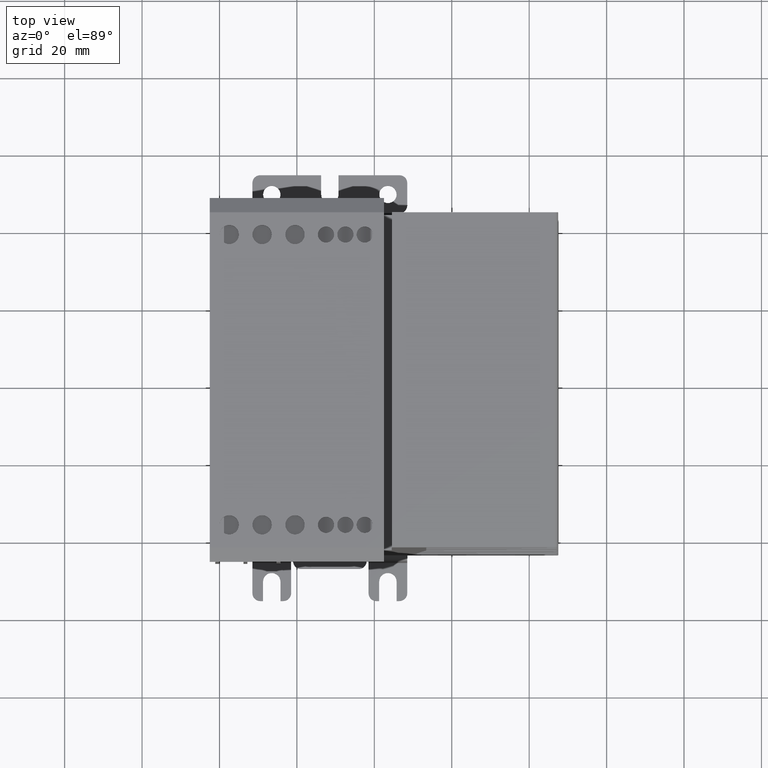
[diagram: clean part render]
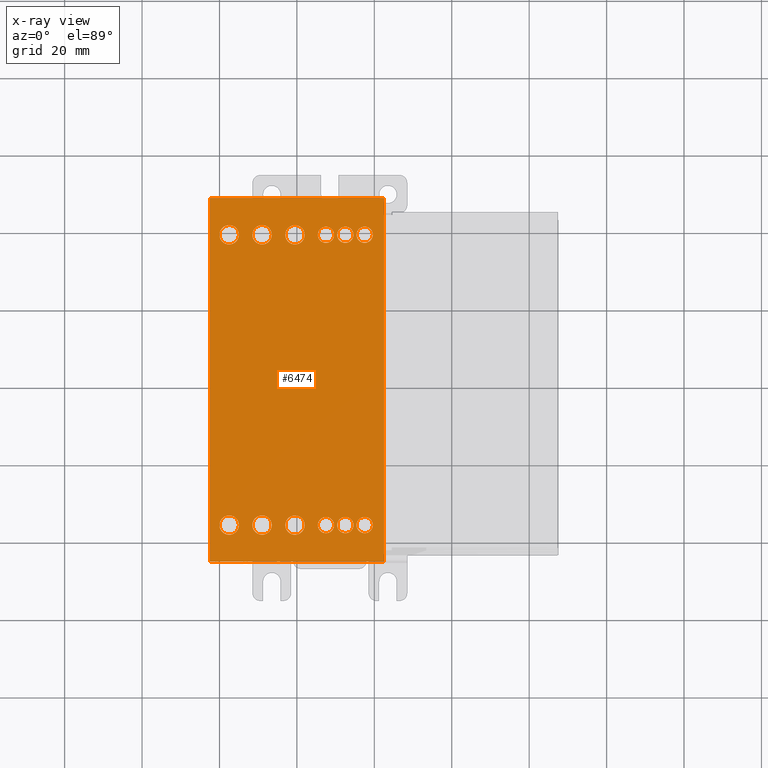
[diagram: x-ray — body ghosted, one internal face saturated and labeled with its STEP entity id]
A machine part, top view, then the same camera in x-ray: the body is ghosted and one INTERNAL B-rep face — a face not visible from any outside direction — is saturated and labeled: STEP entity #6474.
In plain terms, the highlighted planar face has unit normal (0, 0, 1).
Its self-contained STEP definition (entity closure, byte-faithful):
#47 = DIRECTION ( 'NONE',  ( -0.000000000000000000, -0.000000000000000000, -1.000000000000000000 ) ) ;
#53 = EDGE_LOOP ( 'NONE', ( #10457, #2435 ) ) ;
#82 = DIRECTION ( 'NONE',  ( 1.000000000000000000, 0.000000000000000000, 0.000000000000000000 ) ) ;
#96 = DIRECTION ( 'NONE',  ( 1.000000000000000000, 0.000000000000000000, 0.000000000000000000 ) ) ;
#103 = AXIS2_PLACEMENT_3D ( 'NONE', #1141, #2150, #8693 ) ;
#122 = EDGE_CURVE ( 'NONE', #529, #9050, #9845, .T. ) ;
#131 = CARTESIAN_POINT ( 'NONE',  ( 0.8858267716535432879, 1.850393700787401619, 1.496062992125984259 ) ) ;
#148 = DIRECTION ( 'NONE',  ( 1.000000000000000000, 0.000000000000000000, 0.000000000000000000 ) ) ;
#156 = CIRCLE ( 'NONE', #11766, 0.09842519685039372024 ) ;
#165 = DIRECTION ( 'NONE',  ( -0.000000000000000000, -0.000000000000000000, -1.000000000000000000 ) ) ;
#186 = FACE_BOUND ( 'NONE', #6530, .T. ) ;
#203 = CARTESIAN_POINT ( 'NONE',  ( -0.4527559055118110520, -1.476377952755905554, 1.496062992125984259 ) ) ;
#257 = FACE_BOUND ( 'NONE', #10529, .T. ) ;
#328 = EDGE_LOOP ( 'NONE', ( #1728, #11535 ) ) ;
#333 = DIRECTION ( 'NONE',  ( -0.000000000000000000, -0.000000000000000000, -1.000000000000000000 ) ) ;
#424 = CARTESIAN_POINT ( 'NONE',  ( -0.7874015748031496509, 1.476377952755905554, 1.496062992125984259 ) ) ;
#529 = VERTEX_POINT ( 'NONE', #12112 ) ;
#584 = EDGE_CURVE ( 'NONE', #5566, #6223, #11873, .T. ) ;
#610 = DIRECTION ( 'NONE',  ( 1.000000000000000000, 0.000000000000000000, 0.000000000000000000 ) ) ;
#642 = CARTESIAN_POINT ( 'NONE',  ( 0.2125984251968504046, 1.476377952755905554, 1.496062992125984259 ) ) ;
#686 = EDGE_LOOP ( 'NONE', ( #4059, #3126 ) ) ;
#774 = ORIENTED_EDGE ( 'NONE', *, *, #8986, .F. ) ;
#873 = AXIS2_PLACEMENT_3D ( 'NONE', #9542, #2060, #10690 ) ;
#977 = EDGE_CURVE ( 'NONE', #2665, #2452, #11429, .T. ) ;
#981 = ORIENTED_EDGE ( 'NONE', *, *, #977, .F. ) ;
#985 = ORIENTED_EDGE ( 'NONE', *, *, #8868, .F. ) ;
#1011 = DIRECTION ( 'NONE',  ( -0.000000000000000000, -0.000000000000000000, -1.000000000000000000 ) ) ;
#1018 = CIRCLE ( 'NONE', #103, 0.08267716535433068670 ) ;
#1022 = CARTESIAN_POINT ( 'NONE',  ( -0.3543307086614173040, -1.476377952755905554, 1.496062992125984259 ) ) ;
#1028 = AXIS2_PLACEMENT_3D ( 'NONE', #5589, #13019, #3241 ) ;
#1034 = CARTESIAN_POINT ( 'NONE',  ( -0.2559055118110235560, -1.476377952755905554, 1.496062992125984259 ) ) ;
#1084 = CARTESIAN_POINT ( 'NONE',  ( 0.3779527559055118058, -1.476377952755905554, 1.496062992125984259 ) ) ;
#1141 = CARTESIAN_POINT ( 'NONE',  ( 0.2952755905511810774, 1.476377952755905554, 1.496062992125984259 ) ) ;
#1161 = AXIS2_PLACEMENT_3D ( 'NONE', #13125, #11842, #82 ) ;
#1187 = CARTESIAN_POINT ( 'NONE',  ( 0.3779527559055118058, 1.476377952755905554, 1.496062992125984259 ) ) ;
#1251 = CIRCLE ( 'NONE', #1028, 0.09842519685039372024 ) ;
#1258 = EDGE_CURVE ( 'NONE', #6223, #5566, #6652, .T. ) ;
#1299 = DIRECTION ( 'NONE',  ( -0.000000000000000000, -0.000000000000000000, -1.000000000000000000 ) ) ;
#1416 = DIRECTION ( 'NONE',  ( -0.000000000000000000, -0.000000000000000000, -1.000000000000000000 ) ) ;
#1484 = CARTESIAN_POINT ( 'NONE',  ( 0.07874015748031495954, -1.476377952755905554, 1.496062992125984259 ) ) ;
#1523 = VERTEX_POINT ( 'NONE', #12424 ) ;
#1527 = AXIS2_PLACEMENT_3D ( 'NONE', #4389, #8872, #7872 ) ;
#1539 = DIRECTION ( 'NONE',  ( 1.000000000000000000, 0.000000000000000000, 0.000000000000000000 ) ) ;
#1568 = AXIS2_PLACEMENT_3D ( 'NONE', #9721, #13940, #1891 ) ;
#1570 = DIRECTION ( 'NONE',  ( -0.000000000000000000, -0.000000000000000000, -1.000000000000000000 ) ) ;
#1605 = CIRCLE ( 'NONE', #11158, 0.09842519685039370636 ) ;
#1606 = CARTESIAN_POINT ( 'NONE',  ( 0.7716535433070867978, -1.476377952755905554, 1.496062992125984259 ) ) ;
#1616 = ORIENTED_EDGE ( 'NONE', *, *, #2102, .F. ) ;
#1703 = VERTEX_POINT ( 'NONE', #12639 ) ;
#1705 = DIRECTION ( 'NONE',  ( 1.000000000000000000, 0.000000000000000000, 0.000000000000000000 ) ) ;
#1728 = ORIENTED_EDGE ( 'NONE', *, *, #9483, .F. ) ;
#1771 = ORIENTED_EDGE ( 'NONE', *, *, #11611, .F. ) ;
#1791 = VERTEX_POINT ( 'NONE', #1897 ) ;
#1824 = VERTEX_POINT ( 'NONE', #1187 ) ;
#1853 = ORIENTED_EDGE ( 'NONE', *, *, #4327, .F. ) ;
#1891 = DIRECTION ( 'NONE',  ( 1.000000000000000000, 0.000000000000000000, 0.000000000000000000 ) ) ;
#1897 = CARTESIAN_POINT ( 'NONE',  ( -0.5905511811023622659, -1.476377952755905554, 1.496062992125984259 ) ) ;
#1898 = CARTESIAN_POINT ( 'NONE',  ( -0.4527559055118110520, 1.476377952755905554, 1.496062992125984259 ) ) ;
#1927 = EDGE_CURVE ( 'NONE', #1824, #3493, #1018, .T. ) ;
#1969 = VECTOR ( 'NONE', #9665, 39.37007874015748143 ) ;
#1974 = CARTESIAN_POINT ( 'NONE',  ( 0.6062992125984253411, -1.476377952755905554, 1.496062992125984259 ) ) ;
#1997 = AXIS2_PLACEMENT_3D ( 'NONE', #8663, #47, #7452 ) ;
#2038 = ORIENTED_EDGE ( 'NONE', *, *, #8355, .F. ) ;
#2060 = DIRECTION ( 'NONE',  ( -0.000000000000000000, -0.000000000000000000, -1.000000000000000000 ) ) ;
#2102 = EDGE_CURVE ( 'NONE', #8024, #10325, #13769, .T. ) ;
#2104 = AXIS2_PLACEMENT_3D ( 'NONE', #13232, #333, #7806 ) ;
#2150 = DIRECTION ( 'NONE',  ( -0.000000000000000000, -0.000000000000000000, -1.000000000000000000 ) ) ;
#2211 = CIRCLE ( 'NONE', #6973, 0.08267716535433075609 ) ;
#2222 = AXIS2_PLACEMENT_3D ( 'NONE', #5448, #8796, #12092 ) ;
#2251 = ORIENTED_EDGE ( 'NONE', *, *, #3992, .F. ) ;
#2321 = FACE_BOUND ( 'NONE', #53, .T. ) ;
#2372 = EDGE_CURVE ( 'NONE', #11783, #3773, #1251, .T. ) ;
#2435 = ORIENTED_EDGE ( 'NONE', *, *, #1258, .F. ) ;
#2452 = VERTEX_POINT ( 'NONE', #2597 ) ;
#2523 = FACE_BOUND ( 'NONE', #12890, .T. ) ;
#2597 = CARTESIAN_POINT ( 'NONE',  ( 0.6062992125984253411, 1.476377952755905554, 1.496062992125984259 ) ) ;
#2665 = VERTEX_POINT ( 'NONE', #6498 ) ;
#2738 = FACE_BOUND ( 'NONE', #5861, .T. ) ;
#2900 = CIRCLE ( 'NONE', #1997, 0.09842519685039372024 ) ;
#2904 = EDGE_LOOP ( 'NONE', ( #774, #4306 ) ) ;
#2912 = CIRCLE ( 'NONE', #873, 0.09842519685039370636 ) ;
#2919 = ORIENTED_EDGE ( 'NONE', *, *, #6382, .F. ) ;
#2930 = CARTESIAN_POINT ( 'NONE',  ( 0.4921259842519685179, 1.476377952755905554, 1.496062992125984259 ) ) ;
#3068 = DIRECTION ( 'NONE',  ( -0.000000000000000000, -0.000000000000000000, -1.000000000000000000 ) ) ;
#3126 = ORIENTED_EDGE ( 'NONE', *, *, #122, .F. ) ;
#3241 = DIRECTION ( 'NONE',  ( 1.000000000000000000, 0.000000000000000000, 0.000000000000000000 ) ) ;
#3317 = AXIS2_PLACEMENT_3D ( 'NONE', #13880, #4098, #14021 ) ;
#3352 = CIRCLE ( 'NONE', #11091, 0.09842519685039370636 ) ;
#3490 = CIRCLE ( 'NONE', #11240, 0.09842519685039372024 ) ;
#3493 = VERTEX_POINT ( 'NONE', #642 ) ;
#3499 = DIRECTION ( 'NONE',  ( -0.000000000000000000, -1.000000000000000000, -0.000000000000000000 ) ) ;
#3533 = CARTESIAN_POINT ( 'NONE',  ( -0.7874015748031496509, -1.476377952755905554, 1.496062992125984259 ) ) ;
#3688 = ORIENTED_EDGE ( 'NONE', *, *, #4005, .F. ) ;
#3719 = ORIENTED_EDGE ( 'NONE', *, *, #13358, .F. ) ;
#3764 = VERTEX_POINT ( 'NONE', #131 ) ;
#3773 = VERTEX_POINT ( 'NONE', #203 ) ;
#3783 = CARTESIAN_POINT ( 'NONE',  ( 0.4094488188976378451, 1.476377952755905554, 1.496062992125984259 ) ) ;
#3992 = EDGE_CURVE ( 'NONE', #13442, #3764, #5313, .T. ) ;
#4005 = EDGE_CURVE ( 'NONE', #1703, #7218, #9469, .T. ) ;
#4006 = EDGE_CURVE ( 'NONE', #4798, #10867, #5598, .T. ) ;
#4016 = CARTESIAN_POINT ( 'NONE',  ( 0.5748031496062991907, -1.476377952755905554, 1.496062992125984259 ) ) ;
#4059 = ORIENTED_EDGE ( 'NONE', *, *, #12842, .F. ) ;
#4098 = DIRECTION ( 'NONE',  ( -0.000000000000000000, -0.000000000000000000, -1.000000000000000000 ) ) ;
#4130 = ORIENTED_EDGE ( 'NONE', *, *, #12230, .F. ) ;
#4191 = CARTESIAN_POINT ( 'NONE',  ( 0.6889763779527560139, -1.476377952755905554, 1.496062992125984259 ) ) ;
#4240 = CARTESIAN_POINT ( 'NONE',  ( 0.2952755905511810774, -1.476377952755905554, 1.496062992125984259 ) ) ;
#4260 = CARTESIAN_POINT ( 'NONE',  ( -0.1181102362204724532, -1.476377952755905554, 1.496062992125984259 ) ) ;
#4306 = ORIENTED_EDGE ( 'NONE', *, *, #4006, .F. ) ;
#4327 = EDGE_CURVE ( 'NONE', #2452, #2665, #2211, .T. ) ;
#4389 = CARTESIAN_POINT ( 'NONE',  ( -0.6889763779527560139, -1.476377952755905554, 1.496062992125984259 ) ) ;
#4456 = EDGE_CURVE ( 'NONE', #1791, #7527, #156, .T. ) ;
#4498 = VERTEX_POINT ( 'NONE', #3783 ) ;
#4509 = EDGE_CURVE ( 'NONE', #7251, #1523, #5849, .T. ) ;
#4526 = FACE_BOUND ( 'NONE', #6487, .T. ) ;
#4575 = CARTESIAN_POINT ( 'NONE',  ( 0.8858267716535432879, -1.850393700787401619, 1.496062992125984259 ) ) ;
#4590 = AXIS2_PLACEMENT_3D ( 'NONE', #11339, #1570, #8474 ) ;
#4770 = VERTEX_POINT ( 'NONE', #4260 ) ;
#4798 = VERTEX_POINT ( 'NONE', #6399 ) ;
#4909 = VERTEX_POINT ( 'NONE', #1484 ) ;
#4951 = FACE_BOUND ( 'NONE', #328, .T. ) ;
#4990 = CIRCLE ( 'NONE', #10240, 0.08267716535433068670 ) ;
#4995 = EDGE_CURVE ( 'NONE', #4909, #4770, #3352, .T. ) ;
#5138 = AXIS2_PLACEMENT_3D ( 'NONE', #4240, #10884, #8592 ) ;
#5166 = EDGE_CURVE ( 'NONE', #7218, #1703, #2900, .T. ) ;
#5217 = ORIENTED_EDGE ( 'NONE', *, *, #2372, .F. ) ;
#5313 = LINE ( 'NONE', #9592, #1969 ) ;
#5448 = CARTESIAN_POINT ( 'NONE',  ( -0.3543307086614173040, 1.476377952755905554, 1.496062992125984259 ) ) ;
#5463 = ORIENTED_EDGE ( 'NONE', *, *, #4995, .F. ) ;
#5557 = CARTESIAN_POINT ( 'NONE',  ( -0.3543307086614173040, 1.476377952755905554, 1.496062992125984259 ) ) ;
#5566 = VERTEX_POINT ( 'NONE', #1606 ) ;
#5589 = CARTESIAN_POINT ( 'NONE',  ( -0.3543307086614173040, -1.476377952755905554, 1.496062992125984259 ) ) ;
#5598 = CIRCLE ( 'NONE', #5138, 0.08267716535433068670 ) ;
#5744 = LINE ( 'NONE', #6476, #12074 ) ;
#5755 = EDGE_LOOP ( 'NONE', ( #981, #1853 ) ) ;
#5849 = LINE ( 'NONE', #9054, #9937 ) ;
#5861 = EDGE_LOOP ( 'NONE', ( #3688, #12807 ) ) ;
#5897 = EDGE_CURVE ( 'NONE', #10179, #7404, #2912, .T. ) ;
#5986 = CIRCLE ( 'NONE', #13504, 0.08267716535433068670 ) ;
#6223 = VERTEX_POINT ( 'NONE', #1974 ) ;
#6330 = CIRCLE ( 'NONE', #1527, 0.09842519685039372024 ) ;
#6382 = EDGE_CURVE ( 'NONE', #7527, #1791, #6330, .T. ) ;
#6399 = CARTESIAN_POINT ( 'NONE',  ( 0.2125984251968504046, -1.476377952755905554, 1.496062992125984259 ) ) ;
#6407 = DIRECTION ( 'NONE',  ( -0.000000000000000000, -0.000000000000000000, -1.000000000000000000 ) ) ;
#6416 = DIRECTION ( 'NONE',  ( 1.000000000000000000, 0.000000000000000000, 0.000000000000000000 ) ) ;
#6422 = DIRECTION ( 'NONE',  ( 1.000000000000000000, 0.000000000000000000, 0.000000000000000000 ) ) ;
#6461 = AXIS2_PLACEMENT_3D ( 'NONE', #5557, #9909, #148 ) ;
#6472 = EDGE_CURVE ( 'NONE', #10325, #8024, #7906, .T. ) ;
#6474 = ADVANCED_FACE ( 'NONE', ( #2321, #6662, #10015, #257, #11024, #9943, #186, #4526, #2523, #4951, #2738, #7154, #13661 ), #11303, .F. ) ;
#6476 = CARTESIAN_POINT ( 'NONE',  ( -1.886744094488189036E-16, 1.850393700787401619, 1.496062992125984259 ) ) ;
#6487 = EDGE_LOOP ( 'NONE', ( #5463, #12503 ) ) ;
#6498 = CARTESIAN_POINT ( 'NONE',  ( 0.7716535433070867978, 1.476377952755905554, 1.496062992125984259 ) ) ;
#6530 = EDGE_LOOP ( 'NONE', ( #12138, #2919 ) ) ;
#6585 = EDGE_LOOP ( 'NONE', ( #5217, #3719 ) ) ;
#6625 = CARTESIAN_POINT ( 'NONE',  ( 0.6889763779527560139, 1.476377952755905554, 1.496062992125984259 ) ) ;
#6652 = CIRCLE ( 'NONE', #2104, 0.08267716535433075609 ) ;
#6662 = FACE_BOUND ( 'NONE', #2904, .T. ) ;
#6809 = VERTEX_POINT ( 'NONE', #11145 ) ;
#6816 = AXIS2_PLACEMENT_3D ( 'NONE', #7229, #9301, #1539 ) ;
#6822 = CARTESIAN_POINT ( 'NONE',  ( -0.01968503937007873988, -1.476377952755905554, 1.496062992125984259 ) ) ;
#6973 = AXIS2_PLACEMENT_3D ( 'NONE', #6625, #1011, #12132 ) ;
#7154 = FACE_BOUND ( 'NONE', #6585, .T. ) ;
#7218 = VERTEX_POINT ( 'NONE', #424 ) ;
#7229 = CARTESIAN_POINT ( 'NONE',  ( 0.2952755905511810774, -1.476377952755905554, 1.496062992125984259 ) ) ;
#7251 = VERTEX_POINT ( 'NONE', #12115 ) ;
#7257 = CIRCLE ( 'NONE', #1568, 0.09842519685039370636 ) ;
#7304 = AXIS2_PLACEMENT_3D ( 'NONE', #8687, #6407, #7341 ) ;
#7341 = DIRECTION ( 'NONE',  ( 1.000000000000000000, 0.000000000000000000, 0.000000000000000000 ) ) ;
#7355 = DIRECTION ( 'NONE',  ( -0.000000000000000000, -0.000000000000000000, -1.000000000000000000 ) ) ;
#7404 = VERTEX_POINT ( 'NONE', #9669 ) ;
#7452 = DIRECTION ( 'NONE',  ( 1.000000000000000000, 0.000000000000000000, 0.000000000000000000 ) ) ;
#7527 = VERTEX_POINT ( 'NONE', #3533 ) ;
#7562 = AXIS2_PLACEMENT_3D ( 'NONE', #12212, #1299, #10283 ) ;
#7646 = CARTESIAN_POINT ( 'NONE',  ( -0.2559055118110235560, 1.476377952755905554, 1.496062992125984259 ) ) ;
#7700 = CARTESIAN_POINT ( 'NONE',  ( -0.6889763779527560139, -1.476377952755905554, 1.496062992125984259 ) ) ;
#7806 = DIRECTION ( 'NONE',  ( 1.000000000000000000, 0.000000000000000000, 0.000000000000000000 ) ) ;
#7866 = ORIENTED_EDGE ( 'NONE', *, *, #6472, .F. ) ;
#7871 = EDGE_CURVE ( 'NONE', #4770, #4909, #7257, .T. ) ;
#7872 = DIRECTION ( 'NONE',  ( 1.000000000000000000, 0.000000000000000000, 0.000000000000000000 ) ) ;
#7906 = CIRCLE ( 'NONE', #2222, 0.09842519685039372024 ) ;
#8024 = VERTEX_POINT ( 'NONE', #7646 ) ;
#8355 = EDGE_CURVE ( 'NONE', #6809, #4498, #4990, .T. ) ;
#8445 = CARTESIAN_POINT ( 'NONE',  ( -1.886744094488189036E-16, -1.850393700787401619, 1.496062992125984259 ) ) ;
#8474 = DIRECTION ( 'NONE',  ( 1.000000000000000000, 0.000000000000000000, 0.000000000000000000 ) ) ;
#8542 = DIRECTION ( 'NONE',  ( -0.000000000000000000, -0.000000000000000000, -1.000000000000000000 ) ) ;
#8592 = DIRECTION ( 'NONE',  ( 1.000000000000000000, 0.000000000000000000, 0.000000000000000000 ) ) ;
#8663 = CARTESIAN_POINT ( 'NONE',  ( -0.6889763779527560139, 1.476377952755905554, 1.496062992125984259 ) ) ;
#8687 = CARTESIAN_POINT ( 'NONE',  ( 0.2952755905511810774, 1.476377952755905554, 1.496062992125984259 ) ) ;
#8693 = DIRECTION ( 'NONE',  ( 1.000000000000000000, 0.000000000000000000, 0.000000000000000000 ) ) ;
#8796 = DIRECTION ( 'NONE',  ( -0.000000000000000000, -0.000000000000000000, -1.000000000000000000 ) ) ;
#8868 = EDGE_CURVE ( 'NONE', #3764, #7251, #5744, .T. ) ;
#8872 = DIRECTION ( 'NONE',  ( -0.000000000000000000, -0.000000000000000000, -1.000000000000000000 ) ) ;
#8986 = EDGE_CURVE ( 'NONE', #10867, #4798, #13894, .T. ) ;
#9020 = DIRECTION ( 'NONE',  ( -1.000000000000000000, -0.000000000000000000, -0.000000000000000000 ) ) ;
#9050 = VERTEX_POINT ( 'NONE', #4016 ) ;
#9054 = CARTESIAN_POINT ( 'NONE',  ( -0.8858267716535432879, 2.364718897637795262E-16, 1.496062992125984259 ) ) ;
#9086 = DIRECTION ( 'NONE',  ( 0.000000000000000000, 0.000000000000000000, 1.000000000000000000 ) ) ;
#9301 = DIRECTION ( 'NONE',  ( -0.000000000000000000, -0.000000000000000000, -1.000000000000000000 ) ) ;
#9368 = CIRCLE ( 'NONE', #7304, 0.08267716535433068670 ) ;
#9446 = DIRECTION ( 'NONE',  ( 1.000000000000000000, 0.000000000000000000, 0.000000000000000000 ) ) ;
#9469 = CIRCLE ( 'NONE', #3317, 0.09842519685039372024 ) ;
#9483 = EDGE_CURVE ( 'NONE', #7404, #10179, #1605, .T. ) ;
#9542 = CARTESIAN_POINT ( 'NONE',  ( -0.01968503937007873988, 1.476377952755905554, 1.496062992125984259 ) ) ;
#9592 = CARTESIAN_POINT ( 'NONE',  ( 0.8858267716535432879, 2.364718897637795262E-16, 1.496062992125984259 ) ) ;
#9613 = CIRCLE ( 'NONE', #7562, 0.08267716535433068670 ) ;
#9665 = DIRECTION ( 'NONE',  ( 0.000000000000000000, 1.000000000000000000, 0.000000000000000000 ) ) ;
#9669 = CARTESIAN_POINT ( 'NONE',  ( 0.07874015748031495954, 1.476377952755905554, 1.496062992125984259 ) ) ;
#9721 = CARTESIAN_POINT ( 'NONE',  ( -0.01968503937007873988, -1.476377952755905554, 1.496062992125984259 ) ) ;
#9845 = CIRCLE ( 'NONE', #1161, 0.08267716535433068670 ) ;
#9883 = CARTESIAN_POINT ( 'NONE',  ( -0.1181102362204724532, 1.476377952755905554, 1.496062992125984259 ) ) ;
#9909 = DIRECTION ( 'NONE',  ( -0.000000000000000000, -0.000000000000000000, -1.000000000000000000 ) ) ;
#9937 = VECTOR ( 'NONE', #3499, 39.37007874015748143 ) ;
#9943 = FACE_BOUND ( 'NONE', #686, .T. ) ;
#10015 = FACE_BOUND ( 'NONE', #13190, .T. ) ;
#10179 = VERTEX_POINT ( 'NONE', #9883 ) ;
#10240 = AXIS2_PLACEMENT_3D ( 'NONE', #2930, #7355, #6422 ) ;
#10279 = AXIS2_PLACEMENT_3D ( 'NONE', #4191, #8542, #12897 ) ;
#10283 = DIRECTION ( 'NONE',  ( 1.000000000000000000, 0.000000000000000000, 0.000000000000000000 ) ) ;
#10308 = CARTESIAN_POINT ( 'NONE',  ( -1.886744094488189036E-16, 2.364718897637795262E-16, 1.496062992125984259 ) ) ;
#10325 = VERTEX_POINT ( 'NONE', #1898 ) ;
#10457 = ORIENTED_EDGE ( 'NONE', *, *, #584, .F. ) ;
#10474 = DIRECTION ( 'NONE',  ( -0.000000000000000000, -0.000000000000000000, -1.000000000000000000 ) ) ;
#10529 = EDGE_LOOP ( 'NONE', ( #13509, #13547 ) ) ;
#10544 = CARTESIAN_POINT ( 'NONE',  ( 0.4921259842519685179, -1.476377952755905554, 1.496062992125984259 ) ) ;
#10636 = EDGE_LOOP ( 'NONE', ( #2251, #1771, #13170, #985 ) ) ;
#10646 = AXIS2_PLACEMENT_3D ( 'NONE', #10308, #9086, #610 ) ;
#10690 = DIRECTION ( 'NONE',  ( 1.000000000000000000, 0.000000000000000000, 0.000000000000000000 ) ) ;
#10792 = CARTESIAN_POINT ( 'NONE',  ( -0.01968503937007873988, 1.476377952755905554, 1.496062992125984259 ) ) ;
#10867 = VERTEX_POINT ( 'NONE', #1084 ) ;
#10884 = DIRECTION ( 'NONE',  ( -0.000000000000000000, -0.000000000000000000, -1.000000000000000000 ) ) ;
#10961 = VECTOR ( 'NONE', #9446, 39.37007874015748143 ) ;
#11024 = FACE_BOUND ( 'NONE', #5755, .T. ) ;
#11091 = AXIS2_PLACEMENT_3D ( 'NONE', #6822, #1416, #11110 ) ;
#11110 = DIRECTION ( 'NONE',  ( 1.000000000000000000, 0.000000000000000000, 0.000000000000000000 ) ) ;
#11145 = CARTESIAN_POINT ( 'NONE',  ( 0.5748031496062991907, 1.476377952755905554, 1.496062992125984259 ) ) ;
#11158 = AXIS2_PLACEMENT_3D ( 'NONE', #10792, #3068, #13788 ) ;
#11240 = AXIS2_PLACEMENT_3D ( 'NONE', #1022, #165, #96 ) ;
#11282 = EDGE_CURVE ( 'NONE', #3493, #1824, #9368, .T. ) ;
#11303 = PLANE ( 'NONE',  #10646 ) ;
#11339 = CARTESIAN_POINT ( 'NONE',  ( 0.6889763779527560139, 1.476377952755905554, 1.496062992125984259 ) ) ;
#11429 = CIRCLE ( 'NONE', #4590, 0.08267716535433075609 ) ;
#11535 = ORIENTED_EDGE ( 'NONE', *, *, #5897, .F. ) ;
#11611 = EDGE_CURVE ( 'NONE', #1523, #13442, #12803, .T. ) ;
#11766 = AXIS2_PLACEMENT_3D ( 'NONE', #7700, #12061, #6416 ) ;
#11783 = VERTEX_POINT ( 'NONE', #1034 ) ;
#11842 = DIRECTION ( 'NONE',  ( -0.000000000000000000, -0.000000000000000000, -1.000000000000000000 ) ) ;
#11873 = CIRCLE ( 'NONE', #10279, 0.08267716535433075609 ) ;
#12061 = DIRECTION ( 'NONE',  ( -0.000000000000000000, -0.000000000000000000, -1.000000000000000000 ) ) ;
#12074 = VECTOR ( 'NONE', #9020, 39.37007874015748143 ) ;
#12092 = DIRECTION ( 'NONE',  ( 1.000000000000000000, 0.000000000000000000, 0.000000000000000000 ) ) ;
#12112 = CARTESIAN_POINT ( 'NONE',  ( 0.4094488188976378451, -1.476377952755905554, 1.496062992125984259 ) ) ;
#12115 = CARTESIAN_POINT ( 'NONE',  ( -0.8858267716535432879, 1.850393700787401619, 1.496062992125984259 ) ) ;
#12132 = DIRECTION ( 'NONE',  ( 1.000000000000000000, 0.000000000000000000, 0.000000000000000000 ) ) ;
#12138 = ORIENTED_EDGE ( 'NONE', *, *, #4456, .F. ) ;
#12212 = CARTESIAN_POINT ( 'NONE',  ( 0.4921259842519685179, 1.476377952755905554, 1.496062992125984259 ) ) ;
#12230 = EDGE_CURVE ( 'NONE', #4498, #6809, #9613, .T. ) ;
#12424 = CARTESIAN_POINT ( 'NONE',  ( -0.8858267716535432879, -1.850393700787401619, 1.496062992125984259 ) ) ;
#12503 = ORIENTED_EDGE ( 'NONE', *, *, #7871, .F. ) ;
#12639 = CARTESIAN_POINT ( 'NONE',  ( -0.5905511811023622659, 1.476377952755905554, 1.496062992125984259 ) ) ;
#12803 = LINE ( 'NONE', #8445, #10961 ) ;
#12807 = ORIENTED_EDGE ( 'NONE', *, *, #5166, .F. ) ;
#12842 = EDGE_CURVE ( 'NONE', #9050, #529, #5986, .T. ) ;
#12890 = EDGE_LOOP ( 'NONE', ( #1616, #7866 ) ) ;
#12897 = DIRECTION ( 'NONE',  ( 1.000000000000000000, 0.000000000000000000, 0.000000000000000000 ) ) ;
#13019 = DIRECTION ( 'NONE',  ( -0.000000000000000000, -0.000000000000000000, -1.000000000000000000 ) ) ;
#13125 = CARTESIAN_POINT ( 'NONE',  ( 0.4921259842519685179, -1.476377952755905554, 1.496062992125984259 ) ) ;
#13170 = ORIENTED_EDGE ( 'NONE', *, *, #4509, .F. ) ;
#13190 = EDGE_LOOP ( 'NONE', ( #2038, #4130 ) ) ;
#13232 = CARTESIAN_POINT ( 'NONE',  ( 0.6889763779527560139, -1.476377952755905554, 1.496062992125984259 ) ) ;
#13358 = EDGE_CURVE ( 'NONE', #3773, #11783, #3490, .T. ) ;
#13442 = VERTEX_POINT ( 'NONE', #4575 ) ;
#13504 = AXIS2_PLACEMENT_3D ( 'NONE', #10544, #10474, #1705 ) ;
#13509 = ORIENTED_EDGE ( 'NONE', *, *, #1927, .F. ) ;
#13547 = ORIENTED_EDGE ( 'NONE', *, *, #11282, .F. ) ;
#13661 = FACE_OUTER_BOUND ( 'NONE', #10636, .T. ) ;
#13769 = CIRCLE ( 'NONE', #6461, 0.09842519685039372024 ) ;
#13788 = DIRECTION ( 'NONE',  ( 1.000000000000000000, 0.000000000000000000, 0.000000000000000000 ) ) ;
#13880 = CARTESIAN_POINT ( 'NONE',  ( -0.6889763779527560139, 1.476377952755905554, 1.496062992125984259 ) ) ;
#13894 = CIRCLE ( 'NONE', #6816, 0.08267716535433068670 ) ;
#13940 = DIRECTION ( 'NONE',  ( -0.000000000000000000, -0.000000000000000000, -1.000000000000000000 ) ) ;
#14021 = DIRECTION ( 'NONE',  ( 1.000000000000000000, 0.000000000000000000, 0.000000000000000000 ) ) ;